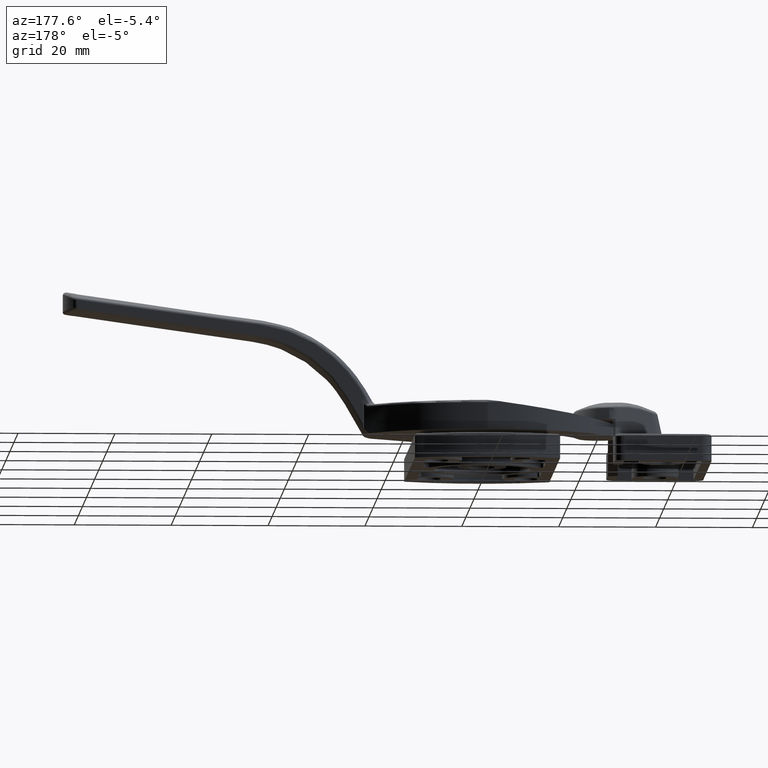
[diagram: clean part render]
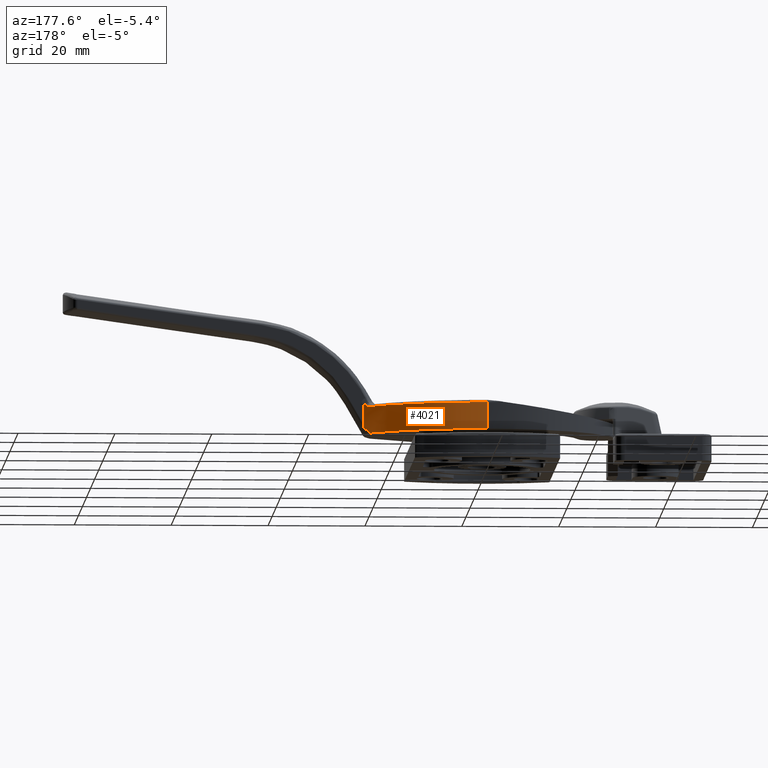
[diagram: same view with one face highlighted and labeled with its STEP entity id]
A machine part, auxiliary view. The second image highlights one B-rep face of the part: STEP entity #4021.
In plain terms, the highlighted cylindrical surface (partial cylindrical patch) has radius 31.6352 mm, axis along (0, 0, 1).
Its self-contained STEP definition (entity closure, byte-faithful):
#415=LINE('',#8855,#604);
#424=LINE('',#8944,#613);
#604=VECTOR('',#5544,4.78543536581355);
#613=VECTOR('',#5599,5.5);
#696=CYLINDRICAL_SURFACE('',#4491,31.6352040816327);
#968=FACE_OUTER_BOUND('',#1275,.T.);
#1275=EDGE_LOOP('',(#3668,#3669,#3670,#3671,#3672,#3673,#3674));
#1523=CIRCLE('',#4463,31.6352040816327);
#1530=CIRCLE('',#4489,31.6352040816327);
#1531=CIRCLE('',#4492,31.6352040816327);
#1574=B_SPLINE_CURVE_WITH_KNOTS('',3,(#7494,#7495,#7496,#7497,#7498,#7499,
#7500,#7501),.UNSPECIFIED.,.F.,.F.,(4,2,2,4),(9.46527144146661E-6,0.0440887216858461,
0.0748537971137151,0.0752817343202229),.UNSPECIFIED.);
#1636=B_SPLINE_CURVE_WITH_KNOTS('',3,(#8786,#8787,#8788,#8789),
 .UNSPECIFIED.,.F.,.F.,(4,4),(-1.22631756035197,-1.00281893581576),
 .UNSPECIFIED.);
#1898=VERTEX_POINT('',#7492);
#1899=VERTEX_POINT('',#7493);
#1978=VERTEX_POINT('',#8778);
#1979=VERTEX_POINT('',#8785);
#1988=VERTEX_POINT('',#8818);
#1990=VERTEX_POINT('',#8854);
#2000=VERTEX_POINT('',#8934);
#2405=EDGE_CURVE('',#1898,#1899,#1574,.F.);
#2526=EDGE_CURVE('',#1978,#1979,#1636,.T.);
#2537=EDGE_CURVE('',#1978,#1988,#1523,.T.);
#2543=EDGE_CURVE('',#1979,#1990,#415,.T.);
#2564=EDGE_CURVE('',#1898,#2000,#1530,.T.);
#2566=EDGE_CURVE('',#1988,#2000,#424,.T.);
#2568=EDGE_CURVE('',#1899,#1990,#1531,.T.);
#3668=ORIENTED_EDGE('',*,*,#2526,.F.);
#3669=ORIENTED_EDGE('',*,*,#2537,.T.);
#3670=ORIENTED_EDGE('',*,*,#2566,.T.);
#3671=ORIENTED_EDGE('',*,*,#2564,.F.);
#3672=ORIENTED_EDGE('',*,*,#2405,.T.);
#3673=ORIENTED_EDGE('',*,*,#2568,.T.);
#3674=ORIENTED_EDGE('',*,*,#2543,.F.);
#4021=ADVANCED_FACE('',(#968),#696,.T.);
#4463=AXIS2_PLACEMENT_3D('',#8820,#5532,#5533);
#4489=AXIS2_PLACEMENT_3D('',#8935,#5595,#5596);
#4491=AXIS2_PLACEMENT_3D('',#8946,#5601,#5602);
#4492=AXIS2_PLACEMENT_3D('',#8947,#5603,#5604);
#5532=DIRECTION('center_axis',(0.,0.,1.));
#5533=DIRECTION('ref_axis',(0.790258850092734,0.61277316345456,0.));
#5544=DIRECTION('',(0.,0.,1.));
#5595=DIRECTION('center_axis',(0.,0.,1.));
#5596=DIRECTION('ref_axis',(0.439125900553627,0.898425535847555,0.));
#5599=DIRECTION('',(0.,0.,1.));
#5601=DIRECTION('center_axis',(0.,0.,1.));
#5602=DIRECTION('ref_axis',(0.790258850092734,0.61277316345456,0.));
#5603=DIRECTION('center_axis',(0.,0.,-1.));
#5604=DIRECTION('ref_axis',(0.790258850092734,0.61277316345456,0.));
#7492=CARTESIAN_POINT('',(24.3643326885961,15.5431365321531,5.5));
#7493=CARTESIAN_POINT('',(24.717367522517,15.1091159918946,6.00000435809752));
#7494=CARTESIAN_POINT('Ctrl Pts',(24.717356533289,15.1091222753953,6.00001272233952));
#7495=CARTESIAN_POINT('Ctrl Pts',(24.6642294945525,15.1756304932125,5.88024937987648));
#7496=CARTESIAN_POINT('Ctrl Pts',(24.6010145153548,15.2542152016325,5.76770785226056));
#7497=CARTESIAN_POINT('Ctrl Pts',(24.4798136588884,15.4030364790353,5.60699745710076));
#7498=CARTESIAN_POINT('Ctrl Pts',(24.4259855901736,15.4686755552812,5.54954550055353));
#7499=CARTESIAN_POINT('Ctrl Pts',(24.3659813077523,15.5411457830714,5.50131698825092));
#7500=CARTESIAN_POINT('Ctrl Pts',(24.3651573760897,15.5421407634305,5.50065745130601));
#7501=CARTESIAN_POINT('Ctrl Pts',(24.3643326885963,15.5431365321529,5.50000000000028));
#8778=CARTESIAN_POINT('',(23.7873376726469,16.2202197628741,2.77555756156289E-16));
#8785=CARTESIAN_POINT('',(24.9999999999986,14.7500000000019,1.21456463418645));
#8786=CARTESIAN_POINT('Ctrl Pts',(23.7873376726469,16.2202197628741,8.15320033709099E-16));
#8787=CARTESIAN_POINT('Ctrl Pts',(24.211895579163,15.7359763181383,0.391514633698793));
#8788=CARTESIAN_POINT('Ctrl Pts',(24.6160332363457,15.2451801926323,0.796583741673758));
#8789=CARTESIAN_POINT('Ctrl Pts',(25.,14.75,1.2145646341896));
#8818=CARTESIAN_POINT('',(-1.93709757094723E-15,27.,0.));
#8820=CARTESIAN_POINT('Origin',(0.,-4.63520408163266,0.));
#8854=CARTESIAN_POINT('',(25.,14.75,6.));
#8855=CARTESIAN_POINT('',(25.,14.75,0.));
#8934=CARTESIAN_POINT('',(-1.93709757094723E-15,27.,5.5));
#8935=CARTESIAN_POINT('Origin',(0.,-4.63520408163266,5.5));
#8944=CARTESIAN_POINT('',(-1.93709757094723E-15,27.,0.));
#8946=CARTESIAN_POINT('Origin',(0.,-4.63520408163266,0.));
#8947=CARTESIAN_POINT('Origin',(0.,-4.63520408163266,6.));